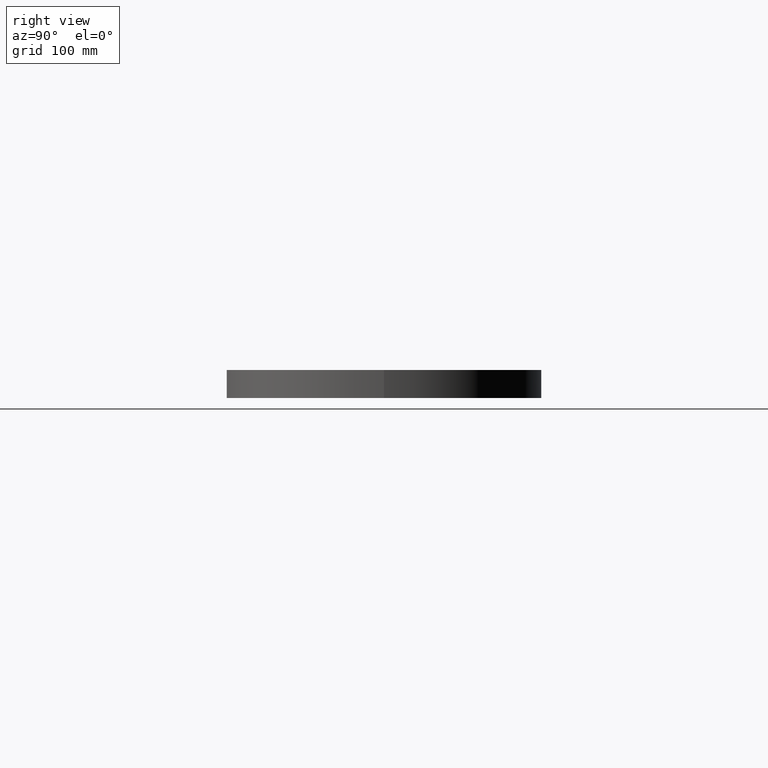
[diagram: clean part render]
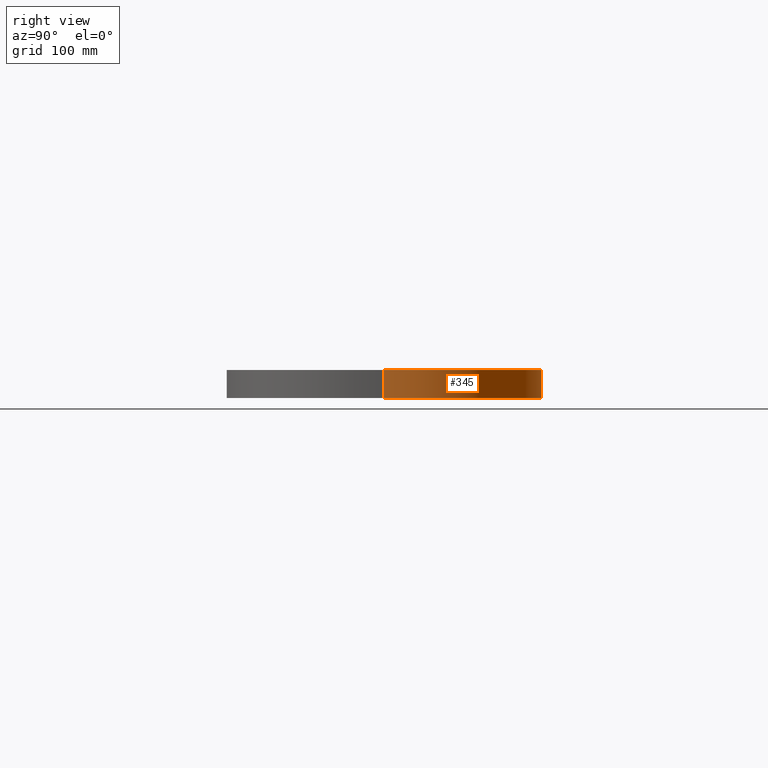
[diagram: same view with one face highlighted and labeled with its STEP entity id]
A machine part, right view. The second image highlights one B-rep face of the part: STEP entity #345.
In plain terms, the highlighted cylindrical surface (partial cylindrical patch) has radius 198.374 mm, axis along (0, 0, 1).
Its self-contained STEP definition (entity closure, byte-faithful):
#256=AXIS2_PLACEMENT_3D('Circle Axis2P3D',#254,#255,$) ;
#284=AXIS2_PLACEMENT_3D('Circle Axis2P3D',#282,#283,$) ;
#295=AXIS2_PLACEMENT_3D('Cylinder Axis2P3D',#292,#293,#294) ;
#318=AXIS2_PLACEMENT_3D('Circle Axis2P3D',#316,#317,$) ;
#332=AXIS2_PLACEMENT_3D('Circle Axis2P3D',#330,#331,$) ;
#254=CARTESIAN_POINT('Axis2P3D Location',(17.0000000001,2.08189955856E-015,-0.690000000003)) ;
#258=CARTESIAN_POINT('Vertex',(24.8100000001,1.69001258283E-016,-0.690000000003)) ;
#260=CARTESIAN_POINT('Vertex',(9.19000000004,3.0383487087E-015,-0.690000000003)) ;
#277=CARTESIAN_POINT('Vertex',(9.19000000004,3.0383487087E-015,0.690000000003)) ;
#279=CARTESIAN_POINT('Vertex',(24.8100000001,1.69001258283E-016,0.690000000003)) ;
#282=CARTESIAN_POINT('Axis2P3D Location',(17.0000000001,2.08189955856E-015,0.690000000003)) ;
#292=CARTESIAN_POINT('Axis2P3D Location',(17.0000000001,2.08189955856E-015,0.)) ;
#297=CARTESIAN_POINT('Line Origine',(9.19000000004,4.95124700897E-015,0.)) ;
#301=CARTESIAN_POINT('Vertex',(9.19000000004,3.0383487087E-015,0.517500000002)) ;
#304=CARTESIAN_POINT('Line Origine',(24.8100000001,1.69001258283E-016,0.)) ;
#309=CARTESIAN_POINT('Line Origine',(9.19000000004,4.95124700897E-015,0.)) ;
#313=CARTESIAN_POINT('Vertex',(9.19000000004,3.0383487087E-015,-0.517500000002)) ;
#316=CARTESIAN_POINT('Axis2P3D Location',(17.0000000001,2.08189955856E-015,-0.517500000002)) ;
#320=CARTESIAN_POINT('Vertex',(9.46657448438,2.06000000001,-0.517500000002)) ;
#323=CARTESIAN_POINT('Line Origine',(9.46657448438,2.06000000001,0.)) ;
#327=CARTESIAN_POINT('Vertex',(9.46657448438,2.06000000001,0.517500000002)) ;
#330=CARTESIAN_POINT('Axis2P3D Location',(17.0000000001,2.08189955856E-015,0.517500000002)) ;
#255=DIRECTION('Axis2P3D Direction',(0.,0.,0.0393700787402)) ;
#283=DIRECTION('Axis2P3D Direction',(0.,0.,0.0393700787402)) ;
#293=DIRECTION('Axis2P3D Direction',(0.,0.,0.0393700787402)) ;
#294=DIRECTION('Axis2P3D XDirection',(-0.0393700787402,4.82144409113E-018,0.)) ;
#298=DIRECTION('Vector Direction',(0.,0.,0.0393700787402)) ;
#305=DIRECTION('Vector Direction',(0.,0.,0.0393700787402)) ;
#310=DIRECTION('Vector Direction',(0.,0.,0.0393700787402)) ;
#317=DIRECTION('Axis2P3D Direction',(0.,0.,0.0393700787402)) ;
#324=DIRECTION('Vector Direction',(0.,0.,0.0393700787402)) ;
#331=DIRECTION('Axis2P3D Direction',(0.,0.,0.0393700787402)) ;
#299=VECTOR('Line Direction',#298,0.0393700787402) ;
#306=VECTOR('Line Direction',#305,0.0393700787402) ;
#311=VECTOR('Line Direction',#310,0.0393700787402) ;
#325=VECTOR('Line Direction',#324,0.0393700787402) ;
#336=ORIENTED_EDGE('',*,*,#303,.T.) ;
#337=ORIENTED_EDGE('',*,*,#286,.F.) ;
#338=ORIENTED_EDGE('',*,*,#308,.F.) ;
#339=ORIENTED_EDGE('',*,*,#262,.T.) ;
#340=ORIENTED_EDGE('',*,*,#315,.T.) ;
#341=ORIENTED_EDGE('',*,*,#322,.F.) ;
#342=ORIENTED_EDGE('',*,*,#329,.T.) ;
#343=ORIENTED_EDGE('',*,*,#334,.T.) ;
#345=ADVANCED_FACE('PartBody',(#344),#296,.T.) ;
#257=CIRCLE('generated circle',#256,7.81000000003) ;
#285=CIRCLE('generated circle',#284,7.81000000003) ;
#319=CIRCLE('generated circle',#318,7.81000000003) ;
#333=CIRCLE('generated circle',#332,7.81000000003) ;
#296=CYLINDRICAL_SURFACE('generated cylinder',#295,7.81000000003) ;
#262=EDGE_CURVE('',#259,#261,#257,.T.) ;
#286=EDGE_CURVE('',#280,#278,#285,.T.) ;
#303=EDGE_CURVE('',#302,#278,#300,.T.) ;
#308=EDGE_CURVE('',#259,#280,#307,.T.) ;
#315=EDGE_CURVE('',#261,#314,#312,.T.) ;
#322=EDGE_CURVE('',#321,#314,#319,.T.) ;
#329=EDGE_CURVE('',#321,#328,#326,.T.) ;
#334=EDGE_CURVE('',#328,#302,#333,.T.) ;
#335=EDGE_LOOP('',(#336,#337,#338,#339,#340,#341,#342,#343)) ;
#344=FACE_OUTER_BOUND('',#335,.T.) ;
#300=LINE('Line',#297,#299) ;
#307=LINE('Line',#304,#306) ;
#312=LINE('Line',#309,#311) ;
#326=LINE('Line',#323,#325) ;
#259=VERTEX_POINT('',#258) ;
#261=VERTEX_POINT('',#260) ;
#278=VERTEX_POINT('',#277) ;
#280=VERTEX_POINT('',#279) ;
#302=VERTEX_POINT('',#301) ;
#314=VERTEX_POINT('',#313) ;
#321=VERTEX_POINT('',#320) ;
#328=VERTEX_POINT('',#327) ;